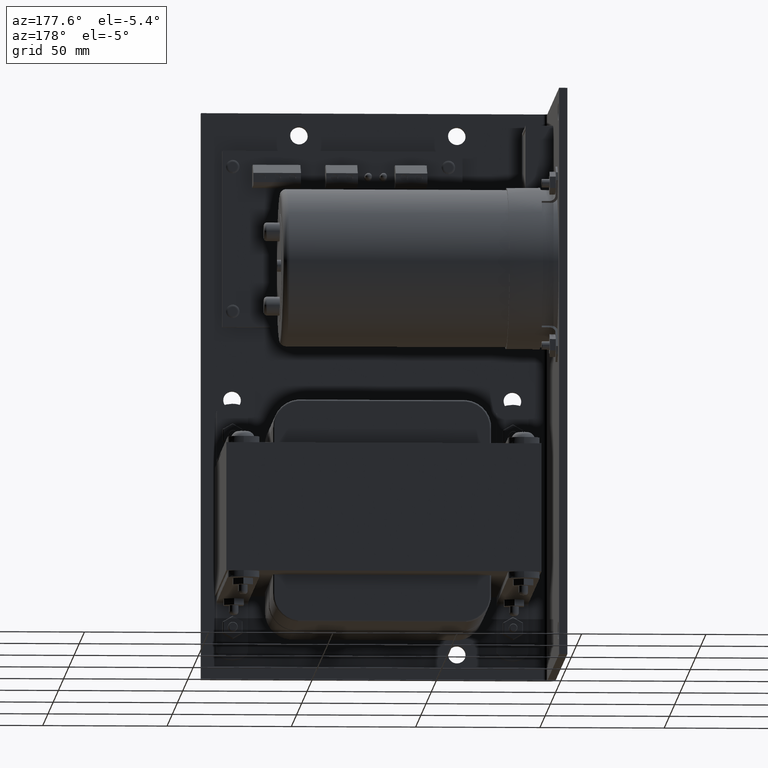
[diagram: clean part render]
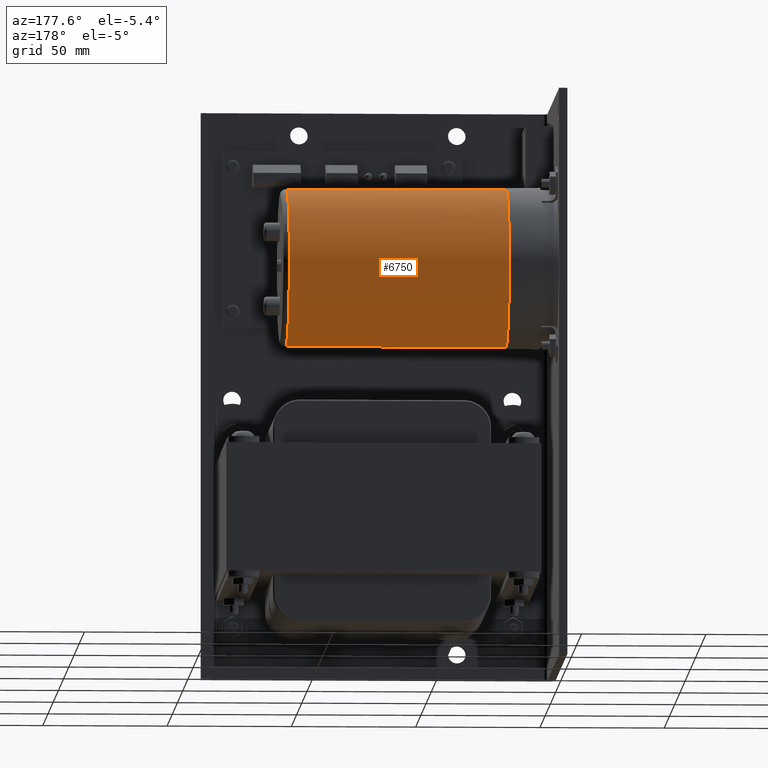
[diagram: same view with one face highlighted and labeled with its STEP entity id]
A machine part, auxiliary view. The second image highlights one B-rep face of the part: STEP entity #6750.
In plain terms, the highlighted cylindrical surface (partial cylindrical patch) has radius 31.75 mm, axis along (-1, -0, -0).
Its self-contained STEP definition (entity closure, byte-faithful):
#24 = VECTOR ( 'NONE', #17912, 39.37007874015748100 ) ;
#368 = DIRECTION ( 'NONE',  ( -1.000000000000000000, -0.0000000000000000000, -0.0000000000000000000 ) ) ;
#2556 = LINE ( 'NONE', #26817, #24 ) ;
#2606 = DIRECTION ( 'NONE',  ( 0.0000000000000000000, 0.0000000000000000000, 1.000000000000000000 ) ) ;
#4450 = DIRECTION ( 'NONE',  ( -1.000000000000000000, -0.0000000000000000000, -0.0000000000000000000 ) ) ;
#5404 = EDGE_CURVE ( 'NONE', #29392, #6189, #18066, .T. ) ;
#6189 = VERTEX_POINT ( 'NONE', #18019 ) ;
#6750 = ADVANCED_FACE ( 'NONE', ( #15380 ), #25563, .T. ) ;
#8014 = ORIENTED_EDGE ( 'NONE', *, *, #8626, .T. ) ;
#8626 = EDGE_CURVE ( 'NONE', #10167, #26335, #18419, .T. ) ;
#9138 = DIRECTION ( 'NONE',  ( 0.0000000000000000000, 0.0000000000000000000, -1.000000000000000000 ) ) ;
#10167 = VERTEX_POINT ( 'NONE', #23758 ) ;
#10402 = EDGE_LOOP ( 'NONE', ( #8014, #15394, #26759, #29316 ) ) ;
#10744 = LINE ( 'NONE', #25406, #21256 ) ;
#11366 = AXIS2_PLACEMENT_3D ( 'NONE', #25919, #28527, #19039 ) ;
#11377 = CARTESIAN_POINT ( 'NONE',  ( 4.402320529999975900, 3.205000002417780300, 0.5046719999999995700 ) ) ;
#11618 = CARTESIAN_POINT ( 'NONE',  ( 4.502320529999975600, 3.205000002417780300, 1.754671999999999600 ) ) ;
#12000 = EDGE_CURVE ( 'NONE', #10167, #6189, #2556, .T. ) ;
#14636 = CARTESIAN_POINT ( 'NONE',  ( 0.9180705299999754000, 3.205000002417780300, 0.5046719375592823000 ) ) ;
#15380 = FACE_OUTER_BOUND ( 'NONE', #10402, .T. ) ;
#15394 = ORIENTED_EDGE ( 'NONE', *, *, #19961, .T. ) ;
#17912 = DIRECTION ( 'NONE',  ( -1.000000000000000000, -0.0000000000000000000, -0.0000000000000000000 ) ) ;
#18019 = CARTESIAN_POINT ( 'NONE',  ( 0.9180705299999754000, 3.205000002417780300, 3.004671937558800500 ) ) ;
#18066 = CIRCLE ( 'NONE', #11366, 1.249999999999759100 ) ;
#18419 = CIRCLE ( 'NONE', #24653, 1.250000000000000000 ) ;
#18519 = DIRECTION ( 'NONE',  ( -1.000000000000000000, -0.0000000000000000000, -0.0000000000000000000 ) ) ;
#19039 = DIRECTION ( 'NONE',  ( 0.0000000000000000000, 0.0000000000000000000, -1.000000000000000000 ) ) ;
#19961 = EDGE_CURVE ( 'NONE', #26335, #29392, #10744, .T. ) ;
#20723 = CARTESIAN_POINT ( 'NONE',  ( 4.402320529999975900, 3.205000002417780300, 1.754671999999999600 ) ) ;
#21256 = VECTOR ( 'NONE', #18519, 39.37007874015748100 ) ;
#23758 = CARTESIAN_POINT ( 'NONE',  ( 4.402320529999975900, 3.205000002417780300, 3.004671999999999800 ) ) ;
#24653 = AXIS2_PLACEMENT_3D ( 'NONE', #20723, #4450, #9138 ) ;
#25406 = CARTESIAN_POINT ( 'NONE',  ( 4.502320529999975600, 3.205000002417780300, 0.5046719999999995700 ) ) ;
#25563 = CYLINDRICAL_SURFACE ( 'NONE', #27089, 1.250000000000000000 ) ;
#25919 = CARTESIAN_POINT ( 'NONE',  ( 0.9180705299999754000, 3.205000000000432600, 1.754671937559041400 ) ) ;
#26335 = VERTEX_POINT ( 'NONE', #11377 ) ;
#26759 = ORIENTED_EDGE ( 'NONE', *, *, #5404, .T. ) ;
#26817 = CARTESIAN_POINT ( 'NONE',  ( 4.502320529999975600, 3.205000002417780300, 3.004671999999999800 ) ) ;
#27089 = AXIS2_PLACEMENT_3D ( 'NONE', #11618, #368, #2606 ) ;
#28527 = DIRECTION ( 'NONE',  ( 1.000000000000000000, -0.0000000000000000000, 0.0000000000000000000 ) ) ;
#29316 = ORIENTED_EDGE ( 'NONE', *, *, #12000, .F. ) ;
#29392 = VERTEX_POINT ( 'NONE', #14636 ) ;